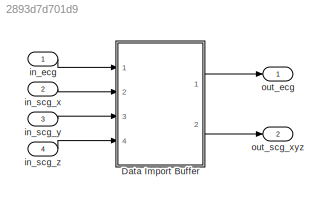
MODEL slx_2893d7d701d9
KIND model
CONFIG AbsTol = auto
CONFIG EnableMultiTasking = off
CONFIG FixedStep = 1/fs
CONFIG MaxStep = 1/fs
CONFIG MinStep = auto
CONFIG RelTol = 1e-3
CONFIG SampleTimeConstraint = Unconstrained
CONFIG Solver = FixedStepDiscrete
CONFIG SolverName = FixedStepDiscrete
CONFIG StartTime = 0.0
CONFIG StopTime = param_sim_time
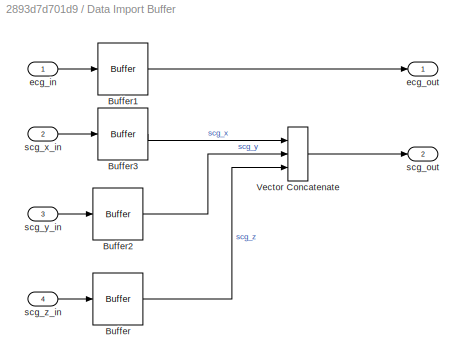
BLOCK [SubSystem] Data Import Buffer
  Ports = [4, 2]
  RequestExecContextInheritance = off
BLOCK [Buffer] Data Import Buffer/Buffer
  N = param_tot_samples
  OutputFrames = off
BLOCK [Buffer] Data Import Buffer/Buffer1
  N = param_tot_samples
  OutputFrames = off
BLOCK [Buffer] Data Import Buffer/Buffer2
  N = param_tot_samples
  OutputFrames = off
BLOCK [Buffer] Data Import Buffer/Buffer3
  N = param_tot_samples
  OutputFrames = off
BLOCK [Concatenate] Data Import Buffer/Vector Concatenate
  ConcatenateDimension = 2
  Mode = Multidimensional array
  NumInputs = 3
  Ports = [3, 1]
BLOCK [Inport] Data Import Buffer/ecg_in
  IconDisplay = Port number
BLOCK [Outport] Data Import Buffer/ecg_out
  IconDisplay = Port number
BLOCK [Outport] Data Import Buffer/scg_out
  IconDisplay = Port number
  Port = 2
BLOCK [Inport] Data Import Buffer/scg_x_in
  IconDisplay = Port number
  Port = 2
BLOCK [Inport] Data Import Buffer/scg_y_in
  IconDisplay = Port number
  Port = 3
BLOCK [Inport] Data Import Buffer/scg_z_in
  IconDisplay = Port number
  Port = 4
BLOCK [Inport] in_ecg
  IconDisplay = Port number
  SampleTime = 1/fs
BLOCK [Inport] in_scg_x
  IconDisplay = Port number
  Port = 2
  SampleTime = 1/fs
BLOCK [Inport] in_scg_y
  IconDisplay = Port number
  Port = 3
  SampleTime = 1/fs
BLOCK [Inport] in_scg_z
  IconDisplay = Port number
  Port = 4
  SampleTime = 1/fs
BLOCK [Outport] out_ecg
  IconDisplay = Port number
BLOCK [Outport] out_scg_xyz
  IconDisplay = Port number
  Port = 2
LINE Data Import Buffer/Buffer1:1 -> Data Import Buffer/ecg_out:1
LINE Data Import Buffer/Buffer2:1 -> Data Import Buffer/Vector Concatenate:2
LINE Data Import Buffer/Buffer3:1 -> Data Import Buffer/Vector Concatenate:1
LINE Data Import Buffer/Buffer:1 -> Data Import Buffer/Vector Concatenate:3
LINE Data Import Buffer/Vector Concatenate:1 -> Data Import Buffer/scg_out:1
LINE Data Import Buffer/ecg_in:1 -> Data Import Buffer/Buffer1:1
LINE Data Import Buffer/scg_x_in:1 -> Data Import Buffer/Buffer3:1
LINE Data Import Buffer/scg_y_in:1 -> Data Import Buffer/Buffer2:1
LINE Data Import Buffer/scg_z_in:1 -> Data Import Buffer/Buffer:1
LINE Data Import Buffer:1 -> out_ecg:1
LINE Data Import Buffer:2 -> out_scg_xyz:1
LINE in_ecg:1 -> Data Import Buffer:1
LINE in_scg_x:1 -> Data Import Buffer:2
LINE in_scg_y:1 -> Data Import Buffer:3
LINE in_scg_z:1 -> Data Import Buffer:4
